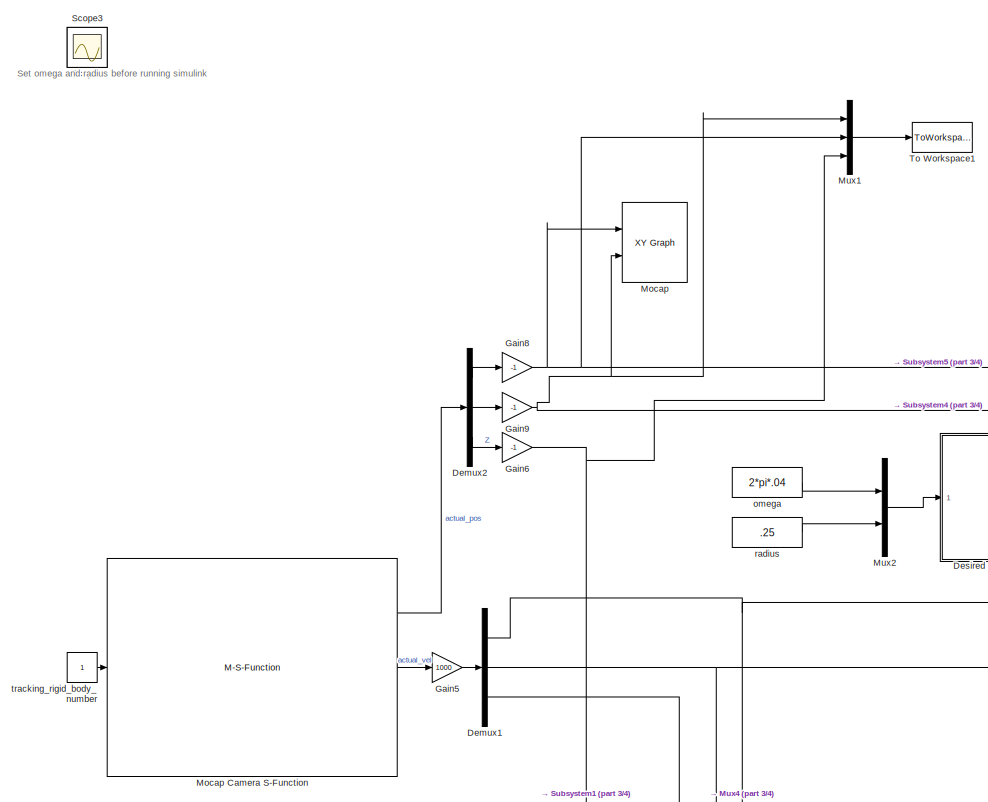
[diagram: root canvas - part 1/4, middle left region]
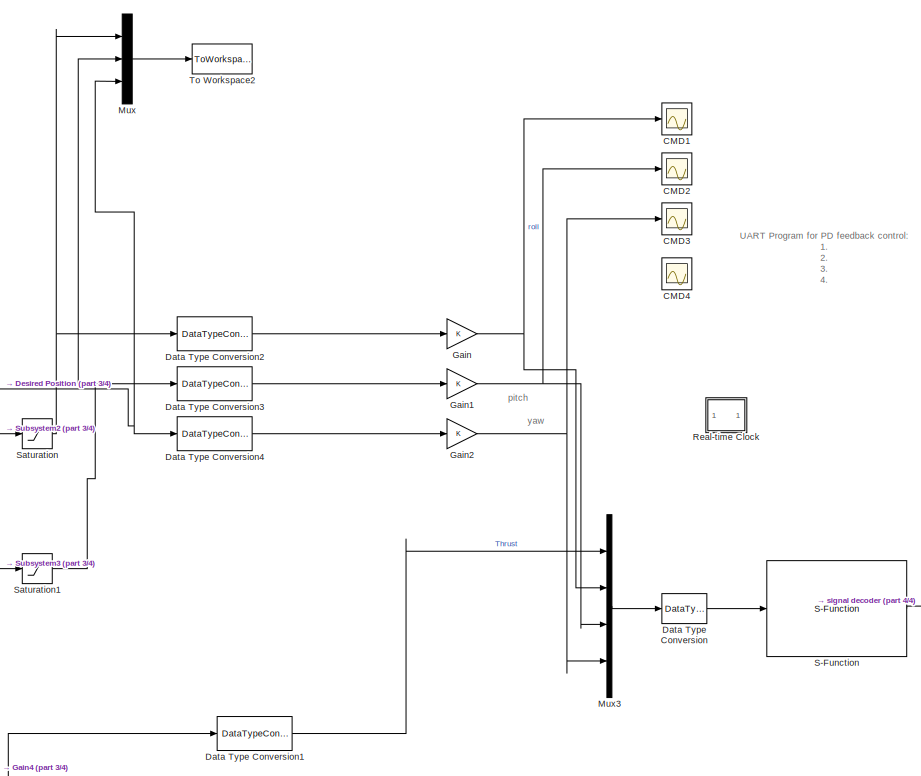
[diagram: root canvas - part 2/4, middle right region]
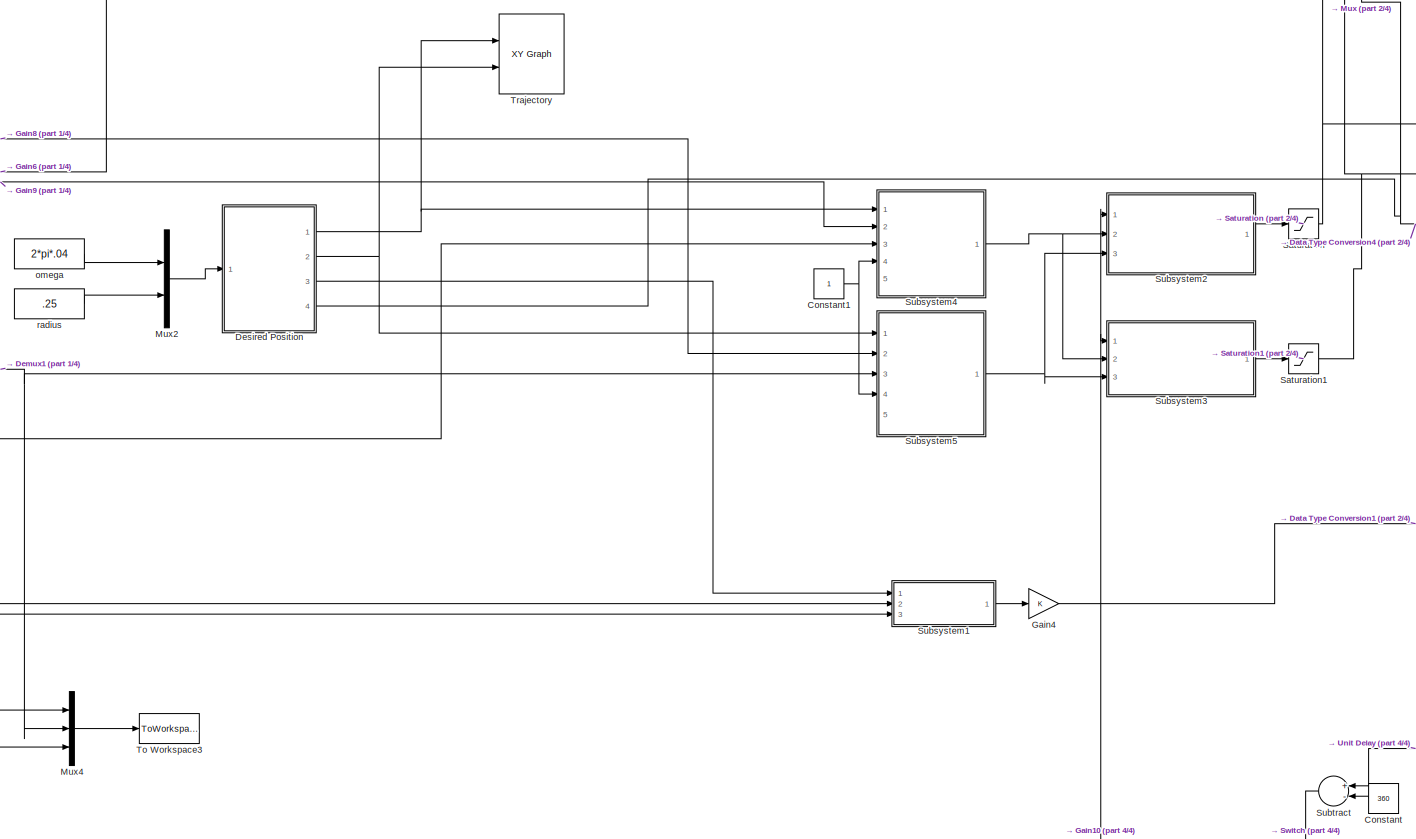
[diagram: root canvas - part 3/4, central region]
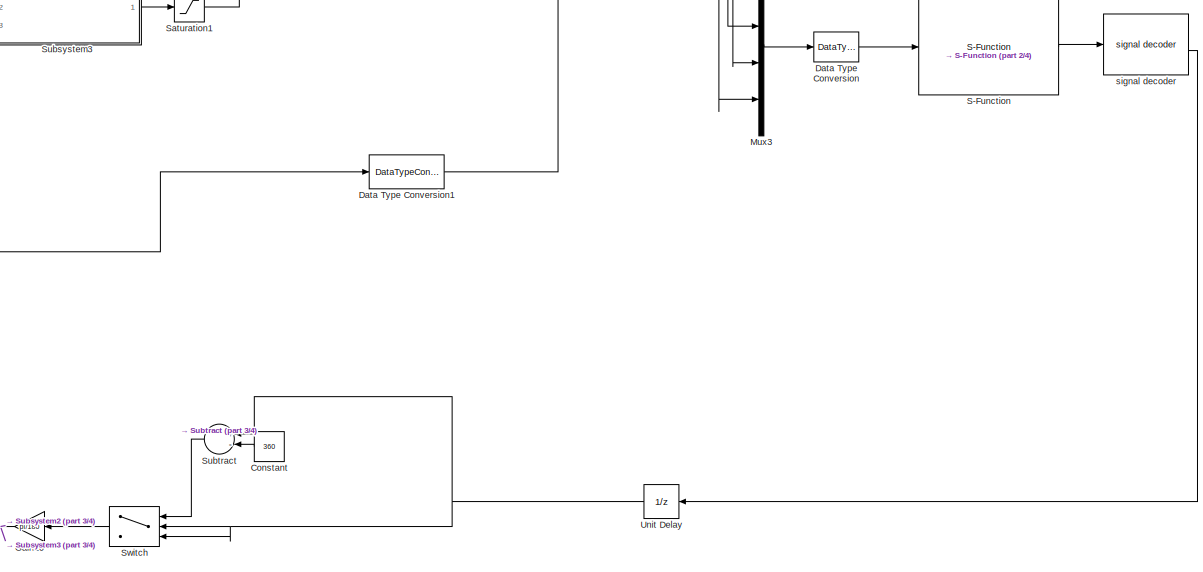
[diagram: root canvas - part 4/4, bottom right region]
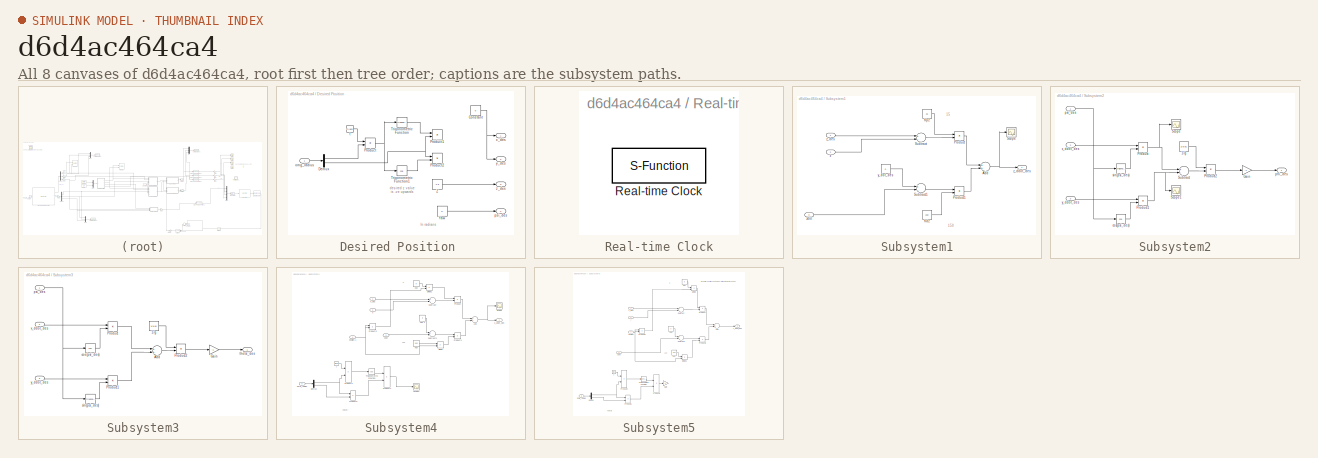
[diagram: thumbnail index - all 8 canvases of the model, root first then tree order]
MODEL slx_d6d4ac464ca4
KIND model
CONFIG AbsTol = auto
CONFIG FixedStep = 0.02
CONFIG InitFcn = %cd('..\Uart_Com');
CONFIG MaxStep = auto
CONFIG MinStep = auto
CONFIG PreLoadFcn = addpath([cd filesep 'QuadCom']);
CONFIG RelTol = 1e-3
CONFIG SampleTimeConstraint = Unconstrained
CONFIG Solver = FixedStepDiscrete
CONFIG SolverMode = SingleTasking
CONFIG SolverName = FixedStepDiscrete
CONFIG StartTime = 0.0
CONFIG StopTime = inf
BLOCK [Scope] CMD1
  DataFormat = StructureWithTime
  Floating = off
  NumInputPorts = 1
  Ports = [1]
  SampleTime = 0
  SaveName = ScopeData15
  YMax = 1
  YMin = -1
BLOCK [Scope] CMD2
  DataFormat = StructureWithTime
  Floating = off
  NumInputPorts = 1
  Ports = [1]
  SampleTime = 0
  SaveName = ScopeData16
  YMax = 0.15
  YMin = -0.15
BLOCK [Scope] CMD3
  DataFormat = StructureWithTime
  Floating = off
  NumInputPorts = 1
  Ports = [1]
  SampleTime = 0
  SaveName = ScopeData17
  YMax = 11.875
  YMin = 11.875
BLOCK [Scope] CMD4
  DataFormat = StructureWithTime
  Floating = off
  NumInputPorts = 1
  Ports = [1]
  SampleTime = 0
  SaveName = ScopeData18
  YMax = 11.875
  YMin = 11.875
BLOCK [Constant] Constant
  Value = 360
BLOCK [Constant] Constant1
BLOCK [DataTypeConversion] Data Type Conversion
  ConvertRealWorld = Stored Integer (SI)
  OutDataTypeStr = int32
  RndMeth = Floor
BLOCK [DataTypeConversion] Data Type Conversion1
  OutDataTypeStr = fixdt(1,16,10)
  RndMeth = Floor
  SaturateOnIntegerOverflow = off
BLOCK [DataTypeConversion] Data Type Conversion2
  OutDataTypeStr = fixdt(1,16,10)
  RndMeth = Floor
  SaturateOnIntegerOverflow = off
BLOCK [DataTypeConversion] Data Type Conversion3
  OutDataTypeStr = fixdt(1,16,10)
  RndMeth = Floor
  SaturateOnIntegerOverflow = off
BLOCK [DataTypeConversion] Data Type Conversion4
  OutDataTypeStr = fixdt(1,16,10)
  RndMeth = Floor
  SaturateOnIntegerOverflow = off
BLOCK [Demux] Demux1
  DisplayOption = bar
  Outputs = 3
  Ports = [1, 3]
BLOCK [Demux] Demux2
  DisplayOption = bar
  Outputs = 3
  Ports = [1, 3]
BLOCK [SubSystem] Desired Position 
  Ports = [1, 4]
  RequestExecContextInheritance = off
BLOCK [Constant] Desired Position /Constant
  Value = 0
BLOCK [Demux] Desired Position /Demux
  DisplayOption = bar
  Outputs = 2
  Ports = [1, 2]
BLOCK [Product] Desired Position /Product
  InputSameDT = off
  OutDataTypeStr = Inherit: Inherit via internal rule
  Ports = [2, 1]
  RndMeth = Floor
  SaturateOnIntegerOverflow = off
BLOCK [Product] Desired Position /Product1
  InputSameDT = off
  OutDataTypeStr = Inherit: Inherit via internal rule
  Ports = [2, 1]
  RndMeth = Floor
  SaturateOnIntegerOverflow = off
BLOCK [Product] Desired Position /Product2
  InputSameDT = off
  OutDataTypeStr = Inherit: Inherit via internal rule
  Ports = [2, 1]
  RndMeth = Floor
  SaturateOnIntegerOverflow = off
BLOCK [Trigonometry] Desired Position /Trigonometric Function
  Ports = [1, 1]
BLOCK [Trigonometry] Desired Position /Trigonometric Function1
  Operator = cos
  Ports = [1, 1]
BLOCK [Constant] Desired Position /Yaw
  Value = 0
BLOCK [Constant] Desired Position /Z 
  Value = -1.5
BLOCK [Inport] Desired Position /omg_radius 
  IconDisplay = Port number
BLOCK [Outport] Desired Position /psi_des
  IconDisplay = Port number
  Port = 4
BLOCK [Clock] Desired Position /t
BLOCK [Outport] Desired Position /x_des
  IconDisplay = Port number
BLOCK [Outport] Desired Position /y_des
  IconDisplay = Port number
  Port = 2
BLOCK [Outport] Desired Position /z_des
  IconDisplay = Port number
  Port = 3
BLOCK [Gain] Gain
  OutDataTypeStr = fixdt(1,16,10)
  ParamDataTypeStr = Inherit: Inherit via internal rule
  SaturateOnIntegerOverflow = off
BLOCK [Gain] Gain1
  OutDataTypeStr = fixdt(1,16,10)
  ParamDataTypeStr = Inherit: Inherit via internal rule
  SaturateOnIntegerOverflow = off
BLOCK [Gain] Gain10
  Gain = pi/180
  OutDataTypeStr = Inherit: Inherit via internal rule
  ParamDataTypeStr = Inherit: Inherit via internal rule
  SaturateOnIntegerOverflow = off
BLOCK [Gain] Gain2
  OutDataTypeStr = fixdt(1,16,10)
  ParamDataTypeStr = Inherit: Inherit via internal rule
  SaturateOnIntegerOverflow = off
BLOCK [Gain] Gain4
  OutDataTypeStr = Inherit: Inherit via internal rule
  ParamDataTypeStr = Inherit: Inherit via internal rule
  SaturateOnIntegerOverflow = off
BLOCK [Gain] Gain5
  Gain = 1000
  OutDataTypeStr = Inherit: Inherit via internal rule
  ParamDataTypeStr = Inherit: Inherit via internal rule
  SaturateOnIntegerOverflow = off
BLOCK [Gain] Gain6
  Gain = -1
  OutDataTypeStr = Inherit: Inherit via internal rule
  ParamDataTypeStr = Inherit: Inherit via internal rule
  SaturateOnIntegerOverflow = off
BLOCK [Gain] Gain8
  Gain = -1
  OutDataTypeStr = Inherit: Inherit via internal rule
  ParamDataTypeStr = Inherit: Inherit via internal rule
  SaturateOnIntegerOverflow = off
BLOCK [Gain] Gain9
  Gain = -1
  OutDataTypeStr = Inherit: Inherit via internal rule
  ParamDataTypeStr = Inherit: Inherit via internal rule
  SaturateOnIntegerOverflow = off
BLOCK [Reference] Mocap  REF=simulink/Sinks/XY Graph
  Ports = [2]
  SourceBlock = simulink/Sinks/XY Graph
  SourceType = XY scope.
  st = -1
  xmax = 1
  xmin = -1
  ymax = 1
  ymin = -1
BLOCK [M-S-Function] Mocap Camera S-Function
  FunctionName = msfcn_quad_mocap
  Ports = [1, 3]
BLOCK [Mux] Mux
  DisplayOption = bar
  Inputs = 3
  Ports = [3, 1]
BLOCK [Mux] Mux1
  DisplayOption = bar
  Inputs = 3
  Ports = [3, 1]
BLOCK [Mux] Mux2
  DisplayOption = bar
  Inputs = 2
  Ports = [2, 1]
BLOCK [Mux] Mux3
  DisplayOption = bar
  Ports = [4, 1]
BLOCK [Mux] Mux4
  DisplayOption = bar
  Inputs = 3
  Ports = [3, 1]
BLOCK [SubSystem] Real-time Clock
  Ports = []
  RequestExecContextInheritance = off
  ShowPortLabels = none
BLOCK [S-Function] Real-time Clock/Real-time Clock
  FunctionName = rtclock
  Parameters = sample_time, tolerance
  Ports = []
BLOCK [Reference] S-Function  REF=CrazyFlie_lib/S-Function
  Ports = [1, 1]
  SourceBlock = CrazyFlie_lib/S-Function
BLOCK [Saturate] Saturation
  InputPortMap = u0
  LowerLimit = -1
  Ports = [1, 1]
  UpperLimit = 1
BLOCK [Saturate] Saturation1
  InputPortMap = u0
  LowerLimit = -1
  Ports = [1, 1]
  UpperLimit = 1
BLOCK [Scope] Scope2
  Floating = off
  IOType = viewer
  MaxDataPoints = 7500
  NumInputPorts = 1
  Ports = []
  SampleTime = 0
  SaveName = ScopeData2
  YMax = 0.07
  YMin = -0.09
BLOCK [Scope] Scope3
  Floating = off
  IOType = viewer
  MaxDataPoints = 7500
  NumInputPorts = 1
  Ports = []
  SampleTime = 0
  SaveName = ScopeData3
  YMax = 2.75
  YMin = -1.25
BLOCK [SubSystem] Subsystem1
  Ports = [3, 1]
  RequestExecContextInheritance = off
BLOCK [Sum] Subsystem1/Add
  InputSameDT = off
  OutDataTypeStr = Inherit: Inherit via internal rule
  Ports = [2, 1]
  SaturateOnIntegerOverflow = off
BLOCK [Constant] Subsystem1/Kdz 
  Value = 150
BLOCK [Constant] Subsystem1/Kpz 
  Value = 15
BLOCK [Product] Subsystem1/Product
  InputSameDT = off
  OutDataTypeStr = Inherit: Inherit via internal rule
  Ports = [2, 1]
  RndMeth = Floor
  SaturateOnIntegerOverflow = off
BLOCK [Product] Subsystem1/Product1
  InputSameDT = off
  OutDataTypeStr = Inherit: Inherit via internal rule
  Ports = [2, 1]
  RndMeth = Floor
  SaturateOnIntegerOverflow = off
BLOCK [Scope] Subsystem1/Scope
  Floating = off
  NumInputPorts = 1
  Ports = [1]
  SaveName = ScopeData31
  YMax = 3
  YMin = -3
BLOCK [Sum] Subsystem1/Subtract
  InputSameDT = off
  Inputs = +-
  OutDataTypeStr = Inherit: Inherit via internal rule
  Ports = [2, 1]
  SaturateOnIntegerOverflow = off
BLOCK [Sum] Subsystem1/Subtract1
  InputSameDT = off
  Inputs = +-
  OutDataTypeStr = Inherit: Inherit via internal rule
  Ports = [2, 1]
  SaturateOnIntegerOverflow = off
BLOCK [Constant] Subsystem1/y_dot_des
  Value = 0
BLOCK [Inport] Subsystem1/z
  IconDisplay = Port number
  Port = 2
BLOCK [Outport] Subsystem1/z_ddot_des
  IconDisplay = Port number
BLOCK [Inport] Subsystem1/z_des
  IconDisplay = Port number
BLOCK [Inport] Subsystem1/zdot 
  IconDisplay = Port number
  Port = 3
BLOCK [SubSystem] Subsystem2
  Ports = [3, 1]
  RequestExecContextInheritance = off
BLOCK [Constant] Subsystem2/1//g 
  Value = 1/9.81
BLOCK [Gain] Subsystem2/Gain
  Gain = -1
  OutDataTypeStr = Inherit: Inherit via internal rule
  ParamDataTypeStr = Inherit: Inherit via internal rule
  SaturateOnIntegerOverflow = off
BLOCK [Product] Subsystem2/Product
  InputSameDT = off
  OutDataTypeStr = Inherit: Inherit via internal rule
  Ports = [2, 1]
  RndMeth = Floor
  SaturateOnIntegerOverflow = off
BLOCK [Product] Subsystem2/Product1
  InputSameDT = off
  OutDataTypeStr = Inherit: Inherit via internal rule
  Ports = [2, 1]
  RndMeth = Floor
  SaturateOnIntegerOverflow = off
BLOCK [Product] Subsystem2/Product2
  InputSameDT = off
  OutDataTypeStr = Inherit: Inherit via internal rule
  Ports = [2, 1]
  RndMeth = Floor
  SaturateOnIntegerOverflow = off
BLOCK [Scope] Subsystem2/Scope
  Floating = off
  NumInputPorts = 1
  Ports = [1]
  SaveName = ScopeData28
  TimeRange = 30
  YMax = 20
  YMin = -30
BLOCK [Scope] Subsystem2/Scope1
  Floating = off
  NumInputPorts = 1
  Ports = [1]
  SaveName = ScopeData30
  TimeRange = 30
  YMax = -61.3
  YMin = -61.5
BLOCK [Sum] Subsystem2/Subtract
  InputSameDT = off
  Inputs = +-
  OutDataTypeStr = Inherit: Inherit via internal rule
  Ports = [2, 1]
  SaturateOnIntegerOverflow = off
BLOCK [Trigonometry] Subsystem2/cos(psi_des)
  Operator = cos
  Ports = [1, 1]
BLOCK [Outport] Subsystem2/phi_des 
  IconDisplay = Port number
BLOCK [Inport] Subsystem2/psi_des 
  IconDisplay = Port number
BLOCK [Trigonometry] Subsystem2/sin(psi_des)
  Ports = [1, 1]
BLOCK [Inport] Subsystem2/x_ddot_des
  IconDisplay = Port number
  Port = 2
BLOCK [Inport] Subsystem2/y_ddot_des 
  IconDisplay = Port number
  Port = 3
BLOCK [SubSystem] Subsystem3
  Ports = [3, 1]
  RequestExecContextInheritance = off
BLOCK [Constant] Subsystem3/1//g 
  Value = 1/9.81
BLOCK [Sum] Subsystem3/Add
  InputSameDT = off
  OutDataTypeStr = Inherit: Inherit via internal rule
  Ports = [2, 1]
  SaturateOnIntegerOverflow = off
BLOCK [Gain] Subsystem3/Gain
  Gain = -1
  OutDataTypeStr = Inherit: Inherit via internal rule
  ParamDataTypeStr = Inherit: Inherit via internal rule
  SaturateOnIntegerOverflow = off
BLOCK [Product] Subsystem3/Product
  InputSameDT = off
  OutDataTypeStr = Inherit: Inherit via internal rule
  Ports = [2, 1]
  RndMeth = Floor
  SaturateOnIntegerOverflow = off
BLOCK [Product] Subsystem3/Product1
  InputSameDT = off
  OutDataTypeStr = Inherit: Inherit via internal rule
  Ports = [2, 1]
  RndMeth = Floor
  SaturateOnIntegerOverflow = off
BLOCK [Product] Subsystem3/Product2
  InputSameDT = off
  OutDataTypeStr = Inherit: Inherit via internal rule
  Ports = [2, 1]
  RndMeth = Floor
  SaturateOnIntegerOverflow = off
BLOCK [Trigonometry] Subsystem3/cos (psi_des)
  Operator = cos
  Ports = [1, 1]
BLOCK [Inport] Subsystem3/psi_des 
  IconDisplay = Port number
BLOCK [Trigonometry] Subsystem3/sin(psi_des)
  Ports = [1, 1]
BLOCK [Outport] Subsystem3/theta_des 
  IconDisplay = Port number
BLOCK [Inport] Subsystem3/x_ddot_des
  IconDisplay = Port number
  Port = 2
BLOCK [Inport] Subsystem3/y_ddot_des 
  IconDisplay = Port number
  Port = 3
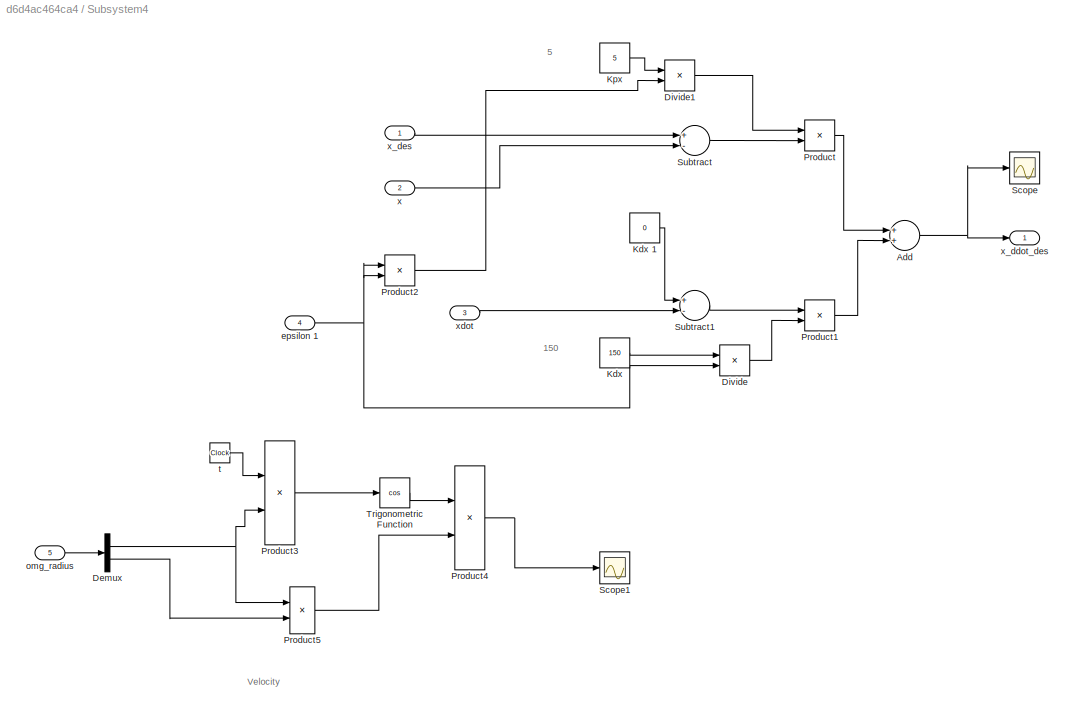
BLOCK [SubSystem] Subsystem4
  Ports = [5, 1]
  RequestExecContextInheritance = off
BLOCK [Sum] Subsystem4/Add
  InputSameDT = off
  OutDataTypeStr = Inherit: Inherit via internal rule
  Ports = [2, 1]
  SaturateOnIntegerOverflow = off
BLOCK [Demux] Subsystem4/Demux
  DisplayOption = bar
  Outputs = 2
  Ports = [1, 2]
BLOCK [Product] Subsystem4/Divide
  InputSameDT = off
  Inputs = */
  OutDataTypeStr = Inherit: Inherit via internal rule
  Ports = [2, 1]
  RndMeth = Floor
  SaturateOnIntegerOverflow = off
BLOCK [Product] Subsystem4/Divide1
  InputSameDT = off
  Inputs = */
  OutDataTypeStr = Inherit: Inherit via internal rule
  Ports = [2, 1]
  RndMeth = Floor
  SaturateOnIntegerOverflow = off
BLOCK [Constant] Subsystem4/Kdx 
  Value = 150
BLOCK [Constant] Subsystem4/Kdx 1
  Value = 0
BLOCK [Constant] Subsystem4/Kpx
  Value = 5
BLOCK [Product] Subsystem4/Product
  InputSameDT = off
  OutDataTypeStr = Inherit: Inherit via internal rule
  Ports = [2, 1]
  RndMeth = Floor
  SaturateOnIntegerOverflow = off
BLOCK [Product] Subsystem4/Product1
  InputSameDT = off
  OutDataTypeStr = Inherit: Inherit via internal rule
  Ports = [2, 1]
  RndMeth = Floor
  SaturateOnIntegerOverflow = off
BLOCK [Product] Subsystem4/Product2
  InputSameDT = off
  OutDataTypeStr = Inherit: Inherit via internal rule
  Ports = [2, 1]
  RndMeth = Floor
  SaturateOnIntegerOverflow = off
BLOCK [Product] Subsystem4/Product3
  InputSameDT = off
  OutDataTypeStr = Inherit: Inherit via internal rule
  Ports = [2, 1]
  RndMeth = Floor
  SaturateOnIntegerOverflow = off
BLOCK [Product] Subsystem4/Product4
  InputSameDT = off
  OutDataTypeStr = Inherit: Inherit via internal rule
  Ports = [2, 1]
  RndMeth = Floor
  SaturateOnIntegerOverflow = off
BLOCK [Product] Subsystem4/Product5
  InputSameDT = off
  OutDataTypeStr = Inherit: Inherit via internal rule
  Ports = [2, 1]
  RndMeth = Floor
  SaturateOnIntegerOverflow = off
BLOCK [Scope] Subsystem4/Scope
  Floating = off
  NumInputPorts = 1
  Ports = [1]
  SaveName = ScopeData29
  TimeRange = 50
  YMax = -1.5
  YMin = -4.5
BLOCK [Scope] Subsystem4/Scope1
  Floating = off
  NumInputPorts = 1
  Ports = [1]
  SaveName = ScopeData33
  TimeRange = 45
  YMax = 0.1
  YMin = -0.1
BLOCK [Sum] Subsystem4/Subtract
  InputSameDT = off
  Inputs = +-
  OutDataTypeStr = Inherit: Inherit via internal rule
  Ports = [2, 1]
  SaturateOnIntegerOverflow = off
BLOCK [Sum] Subsystem4/Subtract1
  InputSameDT = off
  Inputs = +-
  OutDataTypeStr = Inherit: Inherit via internal rule
  Ports = [2, 1]
  SaturateOnIntegerOverflow = off
BLOCK [Trigonometry] Subsystem4/Trigonometric Function
  Operator = cos
  Ports = [1, 1]
BLOCK [Inport] Subsystem4/epsilon 1
  IconDisplay = Port number
  Port = 4
BLOCK [Inport] Subsystem4/omg_radius 
  IconDisplay = Port number
  Port = 5
BLOCK [Clock] Subsystem4/t 
BLOCK [Inport] Subsystem4/x
  IconDisplay = Port number
  Port = 2
BLOCK [Outport] Subsystem4/x_ddot_des
  IconDisplay = Port number
BLOCK [Inport] Subsystem4/x_des
  IconDisplay = Port number
BLOCK [Inport] Subsystem4/xdot 
  IconDisplay = Port number
  Port = 3
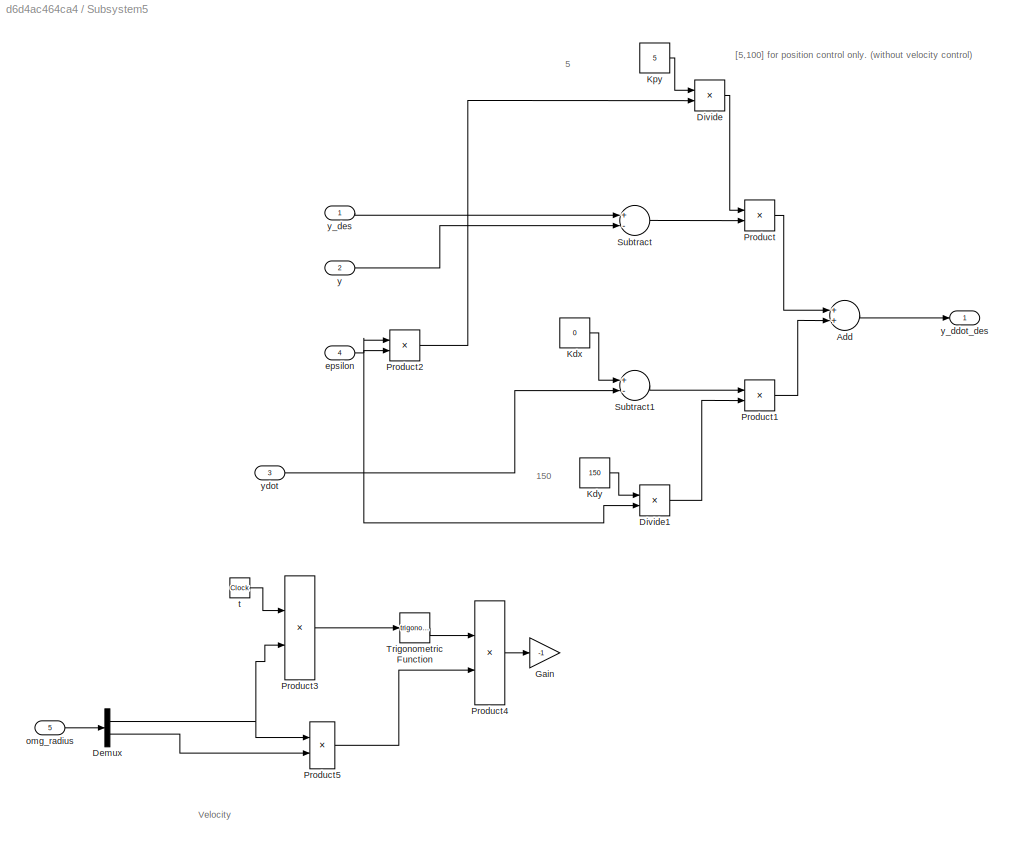
BLOCK [SubSystem] Subsystem5
  Ports = [5, 1]
  RequestExecContextInheritance = off
BLOCK [Sum] Subsystem5/Add
  InputSameDT = off
  OutDataTypeStr = Inherit: Inherit via internal rule
  Ports = [2, 1]
  SaturateOnIntegerOverflow = off
BLOCK [Demux] Subsystem5/Demux
  DisplayOption = bar
  Outputs = 2
  Ports = [1, 2]
BLOCK [Product] Subsystem5/Divide
  InputSameDT = off
  Inputs = */
  OutDataTypeStr = Inherit: Inherit via internal rule
  Ports = [2, 1]
  RndMeth = Floor
  SaturateOnIntegerOverflow = off
BLOCK [Product] Subsystem5/Divide1
  InputSameDT = off
  Inputs = */
  OutDataTypeStr = Inherit: Inherit via internal rule
  Ports = [2, 1]
  RndMeth = Floor
  SaturateOnIntegerOverflow = off
BLOCK [Gain] Subsystem5/Gain
  Gain = -1
  OutDataTypeStr = Inherit: Inherit via internal rule
  ParamDataTypeStr = Inherit: Inherit via internal rule
  SaturateOnIntegerOverflow = off
BLOCK [Constant] Subsystem5/Kdx 
  Value = 0
BLOCK [Constant] Subsystem5/Kdy 
  Value = 150
BLOCK [Constant] Subsystem5/Kpy
  Value = 5
BLOCK [Product] Subsystem5/Product
  InputSameDT = off
  OutDataTypeStr = Inherit: Inherit via internal rule
  Ports = [2, 1]
  RndMeth = Floor
  SaturateOnIntegerOverflow = off
BLOCK [Product] Subsystem5/Product1
  InputSameDT = off
  OutDataTypeStr = Inherit: Inherit via internal rule
  Ports = [2, 1]
  RndMeth = Floor
  SaturateOnIntegerOverflow = off
BLOCK [Product] Subsystem5/Product2
  InputSameDT = off
  OutDataTypeStr = Inherit: Inherit via internal rule
  Ports = [2, 1]
  RndMeth = Floor
  SaturateOnIntegerOverflow = off
BLOCK [Product] Subsystem5/Product3
  InputSameDT = off
  OutDataTypeStr = Inherit: Inherit via internal rule
  Ports = [2, 1]
  RndMeth = Floor
  SaturateOnIntegerOverflow = off
BLOCK [Product] Subsystem5/Product4
  InputSameDT = off
  OutDataTypeStr = Inherit: Inherit via internal rule
  Ports = [2, 1]
  RndMeth = Floor
  SaturateOnIntegerOverflow = off
BLOCK [Product] Subsystem5/Product5
  InputSameDT = off
  OutDataTypeStr = Inherit: Inherit via internal rule
  Ports = [2, 1]
  RndMeth = Floor
  SaturateOnIntegerOverflow = off
BLOCK [Sum] Subsystem5/Subtract
  InputSameDT = off
  Inputs = +-
  OutDataTypeStr = Inherit: Inherit via internal rule
  Ports = [2, 1]
  SaturateOnIntegerOverflow = off
BLOCK [Sum] Subsystem5/Subtract1
  InputSameDT = off
  Inputs = +-
  OutDataTypeStr = Inherit: Inherit via internal rule
  Ports = [2, 1]
  SaturateOnIntegerOverflow = off
BLOCK [Trigonometry] Subsystem5/Trigonometric Function
  Ports = [1, 1]
BLOCK [Inport] Subsystem5/epsilon 
  IconDisplay = Port number
  Port = 4
BLOCK [Inport] Subsystem5/omg_radius 
  IconDisplay = Port number
  Port = 5
BLOCK [Clock] Subsystem5/t 
BLOCK [Inport] Subsystem5/y
  IconDisplay = Port number
  Port = 2
BLOCK [Outport] Subsystem5/y_ddot_des
  IconDisplay = Port number
BLOCK [Inport] Subsystem5/y_des
  IconDisplay = Port number
BLOCK [Inport] Subsystem5/ydot 
  IconDisplay = Port number
  Port = 3
BLOCK [Sum] Subtract
  InputSameDT = off
  Inputs = +-
  OutDataTypeStr = Inherit: Inherit via internal rule
  Ports = [2, 1]
  SaturateOnIntegerOverflow = off
BLOCK [Switch] Switch
  Criteria = u2 > Threshold
  InputSameDT = off
  SaturateOnIntegerOverflow = off
  Threshold = 180
BLOCK [ToWorkspace] To Workspace1
  FixptAsFi = on
  MaxDataPoints = inf
  Ports = [1]
  SampleTime = -1
  Save2DSignal = 3-D array (concatenate along third dimension)
  SaveFormat = Timeseries
  VariableName = mocap
BLOCK [ToWorkspace] To Workspace2
  FixptAsFi = on
  MaxDataPoints = inf
  Ports = [1]
  SampleTime = -1
  Save2DSignal = 3-D array (concatenate along third dimension)
  SaveFormat = Timeseries
  VariableName = angle_des
BLOCK [ToWorkspace] To Workspace3
  FixptAsFi = on
  MaxDataPoints = inf
  Ports = [1]
  SampleTime = -1
  Save2DSignal = 3-D array (concatenate along third dimension)
  SaveFormat = Timeseries
  VariableName = mocap_vel
BLOCK [Reference] Trajectory   REF=simulink/Sinks/XY Graph
  Ports = [2]
  SourceBlock = simulink/Sinks/XY Graph
  SourceType = XY scope.
  st = -1
  xmax = 1
  xmin = -1
  ymax = 1
  ymin = -1
BLOCK [UnitDelay] Unit Delay
  InputProcessing = Elements as channels (sample based)
  SampleTime = -1
BLOCK [Constant] omega
  Value = 2*pi*.04
BLOCK [Constant] radius
  Value = .25
BLOCK [Reference] signal decoder  REF=CrazyFlie_lib/signal decoder
  Ports = [1, 4]
  SourceBlock = CrazyFlie_lib/signal decoder
  SourceType = SubSystem
BLOCK [Constant] tracking_rigid_body_number
ANNOTATION (root): Set omega and radius before running simulink
ANNOTATION (root): UART Program for PD feedback control: 1. 2. 3. 4.
ANNOTATION (root): pitch
ANNOTATION (root): yaw
ANNOTATION Desired Position : In radians
ANNOTATION Desired Position : desired z value is -ve upwards
ANNOTATION Subsystem1: 15
ANNOTATION Subsystem1: 150
ANNOTATION Subsystem4: 150
ANNOTATION Subsystem4: 5
ANNOTATION Subsystem4: Velocity
ANNOTATION Subsystem5: 150
ANNOTATION Subsystem5: 5
ANNOTATION Subsystem5: [5,100] for position control only. (without velocity control)
ANNOTATION Subsystem5: Velocity
NET Constant1:1 -> Subsystem4:4, Subsystem5:4
LINE Constant:1 -> Subtract:2
LINE Data Type Conversion1:1 -> Mux3:1
LINE Data Type Conversion2:1 -> Gain:1
LINE Data Type Conversion3:1 -> Gain1:1
LINE Data Type Conversion4:1 -> Gain2:1
LINE Data Type Conversion:1 -> S-Function:1
NET Demux1:1 -> Mux4:2, Subsystem5:3
NET Demux1:2 -> Mux4:1, Subsystem4:3
NET Demux1:3 -> Mux4:3, Subsystem1:3
LINE Demux2:1 -> Gain8:1
LINE Demux2:2 -> Gain9:1
LINE Demux2:3 -> Gain6:1
NET Desired Position /Constant:1 -> Desired Position /x_des:1, Desired Position /y_des:1
LINE Desired Position /Demux:1 -> Desired Position /Product:2
NET Desired Position /Demux:2 -> Desired Position /Product1:2, Desired Position /Product2:1
NET Desired Position /Product:1 -> Desired Position /Trigonometric Function1:1, Desired Position /Trigonometric Function:1
LINE Desired Position /Trigonometric Function1:1 -> Desired Position /Product2:2
LINE Desired Position /Trigonometric Function:1 -> Desired Position /Product1:1
LINE Desired Position /Yaw:1 -> Desired Position /psi_des:1
LINE Desired Position /Z :1 -> Desired Position /z_des:1
LINE Desired Position /omg_radius :1 -> Desired Position /Demux:1
LINE Desired Position /t:1 -> Desired Position /Product:1
NET Desired Position :1 -> Subsystem4:1, Trajectory :1
NET Desired Position :2 -> Subsystem5:1, Trajectory :2
LINE Desired Position :3 -> Subsystem1:1
NET Desired Position :4 -> Data Type Conversion4:1, Mux:3
NET Gain10:1 -> Subsystem2:1, Subsystem3:1
NET Gain1:1 -> CMD2:1, Mux3:3
NET Gain2:1 -> CMD3:1, Mux3:4
LINE Gain4:1 -> Data Type Conversion1:1
LINE Gain5:1 -> Demux1:1
NET Gain6:1 -> Mux1:3, Subsystem1:2
NET Gain8:1 -> Mocap:1, Mux1:2, Subsystem5:2
NET Gain9:1 -> Mocap:2, Mux1:1, Subsystem4:2
NET Gain:1 -> CMD1:1, Mux3:2
LINE Mocap Camera S-Function:1 -> Demux2:1
LINE Mocap Camera S-Function:2 -> Gain5:1
LINE Mux1:1 -> To Workspace1:1
LINE Mux2:1 -> Desired Position :1
LINE Mux3:1 -> Data Type Conversion:1
LINE Mux4:1 -> To Workspace3:1
LINE Mux:1 -> To Workspace2:1
LINE S-Function:1 -> signal decoder:1
NET Saturation1:1 -> Data Type Conversion3:1, Mux:2
NET Saturation:1 -> Data Type Conversion2:1, Mux:1
NET Subsystem1/Add:1 -> Subsystem1/Scope:1, Subsystem1/z_ddot_des:1
LINE Subsystem1/Kdz :1 -> Subsystem1/Product1:2
LINE Subsystem1/Kpz :1 -> Subsystem1/Product:1
LINE Subsystem1/Product1:1 -> Subsystem1/Add:2
LINE Subsystem1/Product:1 -> Subsystem1/Add:1
LINE Subsystem1/Subtract1:1 -> Subsystem1/Product1:1
LINE Subsystem1/Subtract:1 -> Subsystem1/Product:2
LINE Subsystem1/y_dot_des:1 -> Subsystem1/Subtract1:1
LINE Subsystem1/z:1 -> Subsystem1/Subtract:2
LINE Subsystem1/z_des:1 -> Subsystem1/Subtract:1
LINE Subsystem1/zdot :1 -> Subsystem1/Subtract1:2
LINE Subsystem1:1 -> Gain4:1
LINE Subsystem2/1//g :1 -> Subsystem2/Product2:1
LINE Subsystem2/Gain:1 -> Subsystem2/phi_des :1
NET Subsystem2/Product1:1 -> Subsystem2/Scope1:1, Subsystem2/Subtract:2
LINE Subsystem2/Product2:1 -> Subsystem2/Gain:1
NET Subsystem2/Product:1 -> Subsystem2/Scope:1, Subsystem2/Subtract:1
LINE Subsystem2/Subtract:1 -> Subsystem2/Product2:2
LINE Subsystem2/cos(psi_des):1 -> Subsystem2/Product1:2
NET Subsystem2/psi_des :1 -> Subsystem2/cos(psi_des):1, Subsystem2/sin(psi_des):1
LINE Subsystem2/sin(psi_des):1 -> Subsystem2/Product:2
LINE Subsystem2/x_ddot_des:1 -> Subsystem2/Product:1
LINE Subsystem2/y_ddot_des :1 -> Subsystem2/Product1:1
LINE Subsystem2:1 -> Saturation:1
LINE Subsystem3/1//g :1 -> Subsystem3/Product2:1
LINE Subsystem3/Add:1 -> Subsystem3/Product2:2
LINE Subsystem3/Gain:1 -> Subsystem3/theta_des :1
LINE Subsystem3/Product1:1 -> Subsystem3/Add:2
LINE Subsystem3/Product2:1 -> Subsystem3/Gain:1
LINE Subsystem3/Product:1 -> Subsystem3/Add:1
LINE Subsystem3/cos (psi_des):1 -> Subsystem3/Product:2
NET Subsystem3/psi_des :1 -> Subsystem3/cos (psi_des):1, Subsystem3/sin(psi_des):1
LINE Subsystem3/sin(psi_des):1 -> Subsystem3/Product1:2
LINE Subsystem3/x_ddot_des:1 -> Subsystem3/Product:1
LINE Subsystem3/y_ddot_des :1 -> Subsystem3/Product1:1
LINE Subsystem3:1 -> Saturation1:1
NET Subsystem4/Add:1 -> Subsystem4/Scope:1, Subsystem4/x_ddot_des:1
NET Subsystem4/Demux:1 -> Subsystem4/Product3:2, Subsystem4/Product5:1
LINE Subsystem4/Demux:2 -> Subsystem4/Product5:2
LINE Subsystem4/Divide1:1 -> Subsystem4/Product:1
LINE Subsystem4/Divide:1 -> Subsystem4/Product1:2
LINE Subsystem4/Kdx 1:1 -> Subsystem4/Subtract1:1
LINE Subsystem4/Kdx :1 -> Subsystem4/Divide:1
LINE Subsystem4/Kpx:1 -> Subsystem4/Divide1:1
LINE Subsystem4/Product1:1 -> Subsystem4/Add:2
LINE Subsystem4/Product2:1 -> Subsystem4/Divide1:2
LINE Subsystem4/Product3:1 -> Subsystem4/Trigonometric Function:1
LINE Subsystem4/Product4:1 -> Subsystem4/Scope1:1
LINE Subsystem4/Product5:1 -> Subsystem4/Product4:2
LINE Subsystem4/Product:1 -> Subsystem4/Add:1
LINE Subsystem4/Subtract1:1 -> Subsystem4/Product1:1
LINE Subsystem4/Subtract:1 -> Subsystem4/Product:2
LINE Subsystem4/Trigonometric Function:1 -> Subsystem4/Product4:1
NET Subsystem4/epsilon 1:1 -> Subsystem4/Divide:2, Subsystem4/Product2:1, Subsystem4/Product2:2
LINE Subsystem4/omg_radius :1 -> Subsystem4/Demux:1
LINE Subsystem4/t :1 -> Subsystem4/Product3:1
LINE Subsystem4/x:1 -> Subsystem4/Subtract:2
LINE Subsystem4/x_des:1 -> Subsystem4/Subtract:1
LINE Subsystem4/xdot :1 -> Subsystem4/Subtract1:2
NET Subsystem4:1 -> Subsystem2:2, Subsystem3:2
LINE Subsystem5/Add:1 -> Subsystem5/y_ddot_des:1
NET Subsystem5/Demux:1 -> Subsystem5/Product3:2, Subsystem5/Product5:1
LINE Subsystem5/Demux:2 -> Subsystem5/Product5:2
LINE Subsystem5/Divide1:1 -> Subsystem5/Product1:2
LINE Subsystem5/Divide:1 -> Subsystem5/Product:1
LINE Subsystem5/Kdx :1 -> Subsystem5/Subtract1:1
LINE Subsystem5/Kdy :1 -> Subsystem5/Divide1:1
LINE Subsystem5/Kpy:1 -> Subsystem5/Divide:1
LINE Subsystem5/Product1:1 -> Subsystem5/Add:2
LINE Subsystem5/Product2:1 -> Subsystem5/Divide:2
LINE Subsystem5/Product3:1 -> Subsystem5/Trigonometric Function:1
LINE Subsystem5/Product4:1 -> Subsystem5/Gain:1
LINE Subsystem5/Product5:1 -> Subsystem5/Product4:2
LINE Subsystem5/Product:1 -> Subsystem5/Add:1
LINE Subsystem5/Subtract1:1 -> Subsystem5/Product1:1
LINE Subsystem5/Subtract:1 -> Subsystem5/Product:2
LINE Subsystem5/Trigonometric Function:1 -> Subsystem5/Product4:1
NET Subsystem5/epsilon :1 -> Subsystem5/Divide1:2, Subsystem5/Product2:1, Subsystem5/Product2:2
LINE Subsystem5/omg_radius :1 -> Subsystem5/Demux:1
LINE Subsystem5/t :1 -> Subsystem5/Product3:1
LINE Subsystem5/y:1 -> Subsystem5/Subtract:2
LINE Subsystem5/y_des:1 -> Subsystem5/Subtract:1
LINE Subsystem5/ydot :1 -> Subsystem5/Subtract1:2
NET Subsystem5:1 -> Subsystem2:3, Subsystem3:3
LINE Subtract:1 -> Switch:1
LINE Switch:1 -> Gain10:1
NET Unit Delay:1 -> Subtract:1, Switch:2, Switch:3
LINE omega:1 -> Mux2:1
LINE radius:1 -> Mux2:2
LINE signal decoder:3 -> Unit Delay:1
LINE tracking_rigid_body_number:1 -> Mocap Camera S-Function:1
note: NET lines group one-source signal fan-out (src -> all destinations, sorted); 1:1 wires keep LINE
